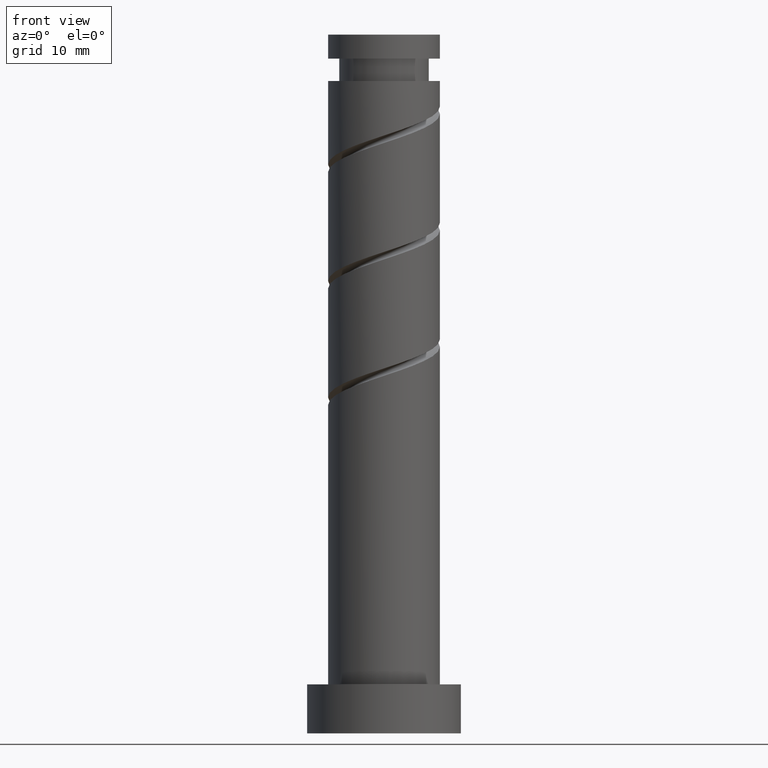
[diagram: clean part render]
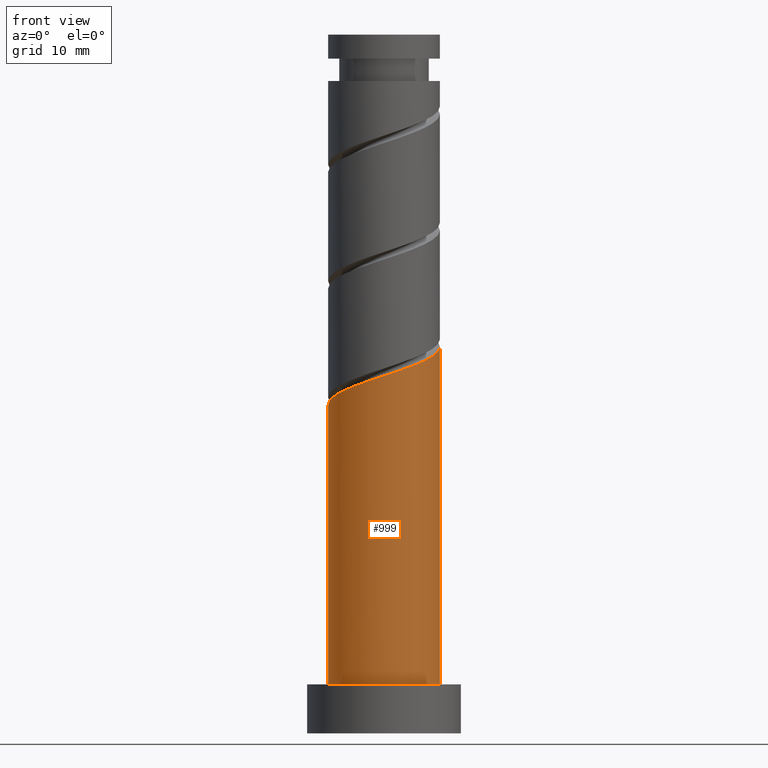
[diagram: same view with one face highlighted and labeled with its STEP entity id]
A machine part, front view. The second image highlights one B-rep face of the part: STEP entity #999.
In plain terms, the highlighted cylindrical surface (partial cylindrical patch) has radius 8 mm, axis along (-0, -0, -1).
Its self-contained STEP definition (entity closure, byte-faithful):
#21 = CARTESIAN_POINT ( 'NONE',  ( 2.974383428124958595, -7.559290990995432225, 52.16893493301791551 ) ) ;
#30 = CARTESIAN_POINT ( 'NONE',  ( -5.993649215984715006, -5.298695035169131984, 48.92819419227716082 ) ) ;
#34 = DIRECTION ( 'NONE',  ( 0.000000000000000000, 0.000000000000000000, 1.000000000000000000 ) ) ;
#108 = EDGE_CURVE ( 'NONE', #1281, #731, #426, .T. ) ;
#119 = CARTESIAN_POINT ( 'NONE',  ( 7.585629115355304819, -2.541304964830882529, 54.48374974783271085 ) ) ;
#127 = ORIENTED_EDGE ( 'NONE', *, *, #1469, .F. ) ;
#135 = CARTESIAN_POINT ( 'NONE',  ( -8.000000000000012434, 6.259426983148450153E-15, 47.00845041506617150 ) ) ;
#138 = FACE_OUTER_BOUND ( 'NONE', #417, .T. ) ;
#162 = CARTESIAN_POINT ( 'NONE',  ( 8.000000000000012434, -6.453633548258067387E-15, 55.34178374839950720 ) ) ;
#192 = VERTEX_POINT ( 'NONE', #162 ) ;
#202 = EDGE_CURVE ( 'NONE', #192, #731, #500, .T. ) ;
#252 = CARTESIAN_POINT ( 'NONE',  ( -6.927952113231022224, -4.241852965488892124, 48.46523122931419891 ) ) ;
#268 = CARTESIAN_POINT ( 'NONE',  ( 5.380435946977611295, -6.086110916219012346, 53.09486085894383223 ) ) ;
#269 = ORIENTED_EDGE ( 'NONE', *, *, #202, .F. ) ;
#270 = DIRECTION ( 'NONE',  ( -0.000000000000000000, -0.000000000000000000, -1.000000000000000000 ) ) ;
#293 = EDGE_CURVE ( 'NONE', #1062, #1281, #334, .T. ) ;
#334 = LINE ( 'NONE', #699, #737 ) ;
#349 = CARTESIAN_POINT ( 'NONE',  ( -7.960944637184256045, -1.616538755408090333, 47.53930530338828930 ) ) ;
#378 = DIRECTION ( 'NONE',  ( -0.000000000000000000, -0.000000000000000000, -1.000000000000000000 ) ) ;
#417 = EDGE_LOOP ( 'NONE', ( #269, #127, #953, #904 ) ) ;
#426 = CIRCLE ( 'NONE', #1033, 8.000000000000000000 ) ;
#460 = CARTESIAN_POINT ( 'NONE',  ( -8.000000000000015987, -0.1032133946561639704, 47.04246778899855030 ) ) ;
#480 = CARTESIAN_POINT ( 'NONE',  ( 7.137528483847245475, -3.878856043515705565, 54.02078678486975605 ) ) ;
#496 = CARTESIAN_POINT ( 'NONE',  ( 6.258982215412427941, -4.982483479867354959, 53.55782382190678703 ) ) ;
#500 = LINE ( 'NONE', #1193, #1192 ) ;
#585 = CARTESIAN_POINT ( 'NONE',  ( 8.000000000000012434, -6.453633548258068176E-15, 55.34178374839950720 ) ) ;
#595 = CARTESIAN_POINT ( 'NONE',  ( 8.000000000000012434, -1.304434974563665195, 54.91186423603389244 ) ) ;
#671 = CARTESIAN_POINT ( 'NONE',  ( 8.000000000000000000, 9.797174393178823685E-16, 7.000000000000000000 ) ) ;
#691 = CARTESIAN_POINT ( 'NONE',  ( -8.000000000000000000, 0.000000000000000000, 7.000000000000000000 ) ) ;
#699 = CARTESIAN_POINT ( 'NONE',  ( -8.000000000000000000, 0.000000000000000000, 100.0000000000000000 ) ) ;
#730 = CARTESIAN_POINT ( 'NONE',  ( -7.444448375207636026, -2.929195860448490230, 48.00226826635122279 ) ) ;
#731 = VERTEX_POINT ( 'NONE', #671 ) ;
#737 = VECTOR ( 'NONE', #916, 1000.000000000000000 ) ;
#774 =( BOUNDED_CURVE ( )  B_SPLINE_CURVE ( 2, ( #135, #460, #961, #349, #730, #252, #30, #1275, #1069, #845, #944, #935, #1053, #21, #1377, #268, #496, #480, #119, #595, #585 ),
 .UNSPECIFIED., .F., .F. ) 
 B_SPLINE_CURVE_WITH_KNOTS ( ( 3, 2, 2, 2, 2, 2, 2, 2, 2, 2, 3 ),
 ( 0.05452480538552905570, 0.05555555555555558023, 0.06944444444444441977, 0.08333333333333337034, 0.09722222222222220989, 0.1111111111111111605, 0.1250000000000000000, 0.1388888888888888395, 0.1527777777777777901, 0.1666666666666666297, 0.1795248053855290349 ),
 .UNSPECIFIED. ) 
 CURVE ( )  GEOMETRIC_REPRESENTATION_ITEM ( )  RATIONAL_B_SPLINE_CURVE ( ( 0.9071930855141274730, 0.9080659294509751955, 0.9090909090909153889, 0.8952797754656497409, 0.9090909090909153889, 0.8952797754656497409, 0.9090909090909153889, 0.8952797754656497409, 0.9090909090909153889, 0.8952797754656497409, 0.9090909090909153889, 0.8952797754656497409, 0.9090909090909153889, 0.8952797754656497409, 0.9090909090909153889, 0.8952797754656497409, 0.9090909090909153889, 0.8952797754656497409, 0.9090909090909153889, 0.8963047551055898232, 0.9071930855141275840 ) ) 
 REPRESENTATION_ITEM ( '' )  );
#845 = CARTESIAN_POINT ( 'NONE',  ( -2.580508690206642530, -7.702649671627100680, 50.31708308116606077 ) ) ;
#904 = ORIENTED_EDGE ( 'NONE', *, *, #108, .T. ) ;
#916 = DIRECTION ( 'NONE',  ( -0.000000000000000000, -0.000000000000000000, -1.000000000000000000 ) ) ;
#935 = CARTESIAN_POINT ( 'NONE',  ( 0.2095763706162223905, -8.120709009004597689, 51.24300900709199169 ) ) ;
#944 = CARTESIAN_POINT ( 'NONE',  ( -1.185466159795209196, -7.911679340315847853, 50.78004604412902268 ) ) ;
#946 = CARTESIAN_POINT ( 'NONE',  ( 0.000000000000000000, 0.000000000000000000, 100.0000000000000000 ) ) ;
#953 = ORIENTED_EDGE ( 'NONE', *, *, #293, .T. ) ;
#961 = CARTESIAN_POINT ( 'NONE',  ( -7.997337192023812769, -0.2063924346310180291, 47.07634234042530608 ) ) ;
#981 = CARTESIAN_POINT ( 'NONE',  ( 0.000000000000000000, 0.000000000000000000, 7.000000000000000000 ) ) ;
#999 = ADVANCED_FACE ( 'NONE', ( #138 ), #1159, .T. ) ;
#1033 = AXIS2_PLACEMENT_3D ( 'NONE', #981, #34, #1412 ) ;
#1053 = CARTESIAN_POINT ( 'NONE',  ( 1.591979899370591589, -7.840000000000013181, 51.70597197005493229 ) ) ;
#1062 = VERTEX_POINT ( 'NONE', #1434 ) ;
#1069 = CARTESIAN_POINT ( 'NONE',  ( -3.819927504472524937, -7.029093388238237594, 49.85412011820307754 ) ) ;
#1078 = DIRECTION ( 'NONE',  ( -1.000000000000000000, 0.000000000000000000, 0.000000000000000000 ) ) ;
#1159 = CYLINDRICAL_SURFACE ( 'NONE', #1449, 8.000000000000000000 ) ;
#1192 = VECTOR ( 'NONE', #378, 1000.000000000000000 ) ;
#1193 = CARTESIAN_POINT ( 'NONE',  ( 8.000000000000000000, 9.797174393178823685E-16, 100.0000000000000000 ) ) ;
#1275 = CARTESIAN_POINT ( 'NONE',  ( -5.059346318738408677, -6.355537104849378949, 49.39115715524012273 ) ) ;
#1281 = VERTEX_POINT ( 'NONE', #691 ) ;
#1377 = CARTESIAN_POINT ( 'NONE',  ( 4.177409687551286055, -6.822700953607219176, 52.63189789598085611 ) ) ;
#1412 = DIRECTION ( 'NONE',  ( 1.000000000000000000, 0.000000000000000000, 0.000000000000000000 ) ) ;
#1434 = CARTESIAN_POINT ( 'NONE',  ( -8.000000000000012434, 6.259426983148449364E-15, 47.00845041506617861 ) ) ;
#1449 = AXIS2_PLACEMENT_3D ( 'NONE', #946, #270, #1078 ) ;
#1469 = EDGE_CURVE ( 'NONE', #1062, #192, #774, .T. ) ;